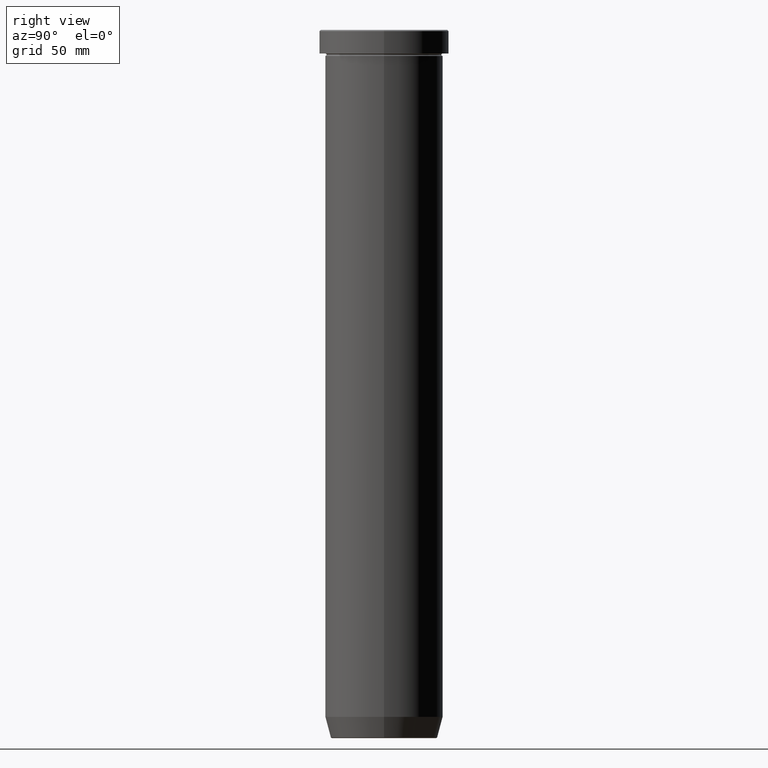
[diagram: clean part render]
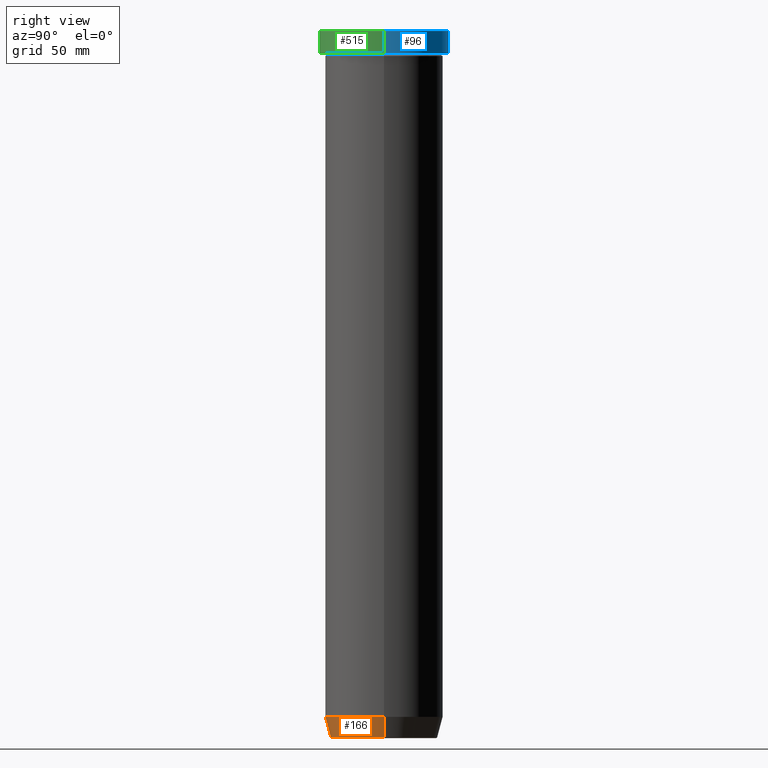
[diagram: same view with three faces highlighted in distinct colors, each labeled with its STEP entity id]
A machine part, right view with three faces highlighted in distinct colors.
Their STEP definitions:

[orange] entity #166 — the highlighted conical surface has half-angle 15 deg.
#5 = CARTESIAN_POINT ( 'NONE',  ( 22.58845726811988897, 0.000000000000000000, -300.0000000000000000 ) ) ;
#10 = CARTESIAN_POINT ( 'NONE',  ( -25.00000000000000000, 3.061616997868383043E-15, -291.0000000000000000 ) ) ;
#22 = AXIS2_PLACEMENT_3D ( 'NONE', #230, #83, #456 ) ;
#75 = CARTESIAN_POINT ( 'NONE',  ( 0.000000000000000000, 0.000000000000000000, -299.6294095225512137 ) ) ;
#78 = AXIS2_PLACEMENT_3D ( 'NONE', #75, #269, #225 ) ;
#83 = DIRECTION ( 'NONE',  ( -0.000000000000000000, -0.000000000000000000, 1.000000000000000000 ) ) ;
#112 = EDGE_CURVE ( 'NONE', #240, #432, #125, .T. ) ;
#119 = CARTESIAN_POINT ( 'NONE',  ( -22.58845726811988897, 2.766288189107978730E-15, -300.0000000000000000 ) ) ;
#125 = CIRCLE ( 'NONE', #22, 25.00000000000000000 ) ;
#132 = FACE_OUTER_BOUND ( 'NONE', #267, .T. ) ;
#133 = VERTEX_POINT ( 'NONE', #544 ) ;
#166 = ADVANCED_FACE ( 'NONE', ( #132 ), #590, .T. ) ;
#181 = LINE ( 'NONE', #119, #395 ) ;
#188 = ORIENTED_EDGE ( 'NONE', *, *, #333, .F. ) ;
#218 = CARTESIAN_POINT ( 'NONE',  ( -22.68775668727494477, 2.920032929279452187E-15, -299.6294095225512137 ) ) ;
#222 = EDGE_CURVE ( 'NONE', #133, #432, #327, .T. ) ;
#225 = DIRECTION ( 'NONE',  ( -1.000000000000000000, 0.000000000000000000, 0.000000000000000000 ) ) ;
#230 = CARTESIAN_POINT ( 'NONE',  ( 0.000000000000000000, 0.000000000000000000, -291.0000000000000000 ) ) ;
#237 = AXIS2_PLACEMENT_3D ( 'NONE', #277, #239, #323 ) ;
#239 = DIRECTION ( 'NONE',  ( -0.000000000000000000, -0.000000000000000000, 1.000000000000000000 ) ) ;
#240 = VERTEX_POINT ( 'NONE', #10 ) ;
#267 = EDGE_LOOP ( 'NONE', ( #188, #279, #447, #461 ) ) ;
#269 = DIRECTION ( 'NONE',  ( -0.000000000000000000, -0.000000000000000000, 1.000000000000000000 ) ) ;
#277 = CARTESIAN_POINT ( 'NONE',  ( 0.000000000000000000, 0.000000000000000000, -300.0000000000000000 ) ) ;
#279 = ORIENTED_EDGE ( 'NONE', *, *, #572, .T. ) ;
#292 = VECTOR ( 'NONE', #557, 1000.000000000000114 ) ;
#317 = VERTEX_POINT ( 'NONE', #218 ) ;
#323 = DIRECTION ( 'NONE',  ( 1.000000000000000000, 0.000000000000000000, 0.000000000000000000 ) ) ;
#327 = LINE ( 'NONE', #5, #292 ) ;
#333 = EDGE_CURVE ( 'NONE', #317, #240, #181, .T. ) ;
#395 = VECTOR ( 'NONE', #448, 1000.000000000000114 ) ;
#407 = CARTESIAN_POINT ( 'NONE',  ( 25.00000000000000000, 0.000000000000000000, -291.0000000000000000 ) ) ;
#432 = VERTEX_POINT ( 'NONE', #407 ) ;
#447 = ORIENTED_EDGE ( 'NONE', *, *, #222, .T. ) ;
#448 = DIRECTION ( 'NONE',  ( -0.2588190451025211836, 3.169619151431770488E-17, 0.9659258262890680902 ) ) ;
#456 = DIRECTION ( 'NONE',  ( 1.000000000000000000, 0.000000000000000000, 0.000000000000000000 ) ) ;
#461 = ORIENTED_EDGE ( 'NONE', *, *, #112, .F. ) ;
#496 = CIRCLE ( 'NONE', #78, 22.68775668727494477 ) ;
#544 = CARTESIAN_POINT ( 'NONE',  ( 22.68775668727494477, 0.000000000000000000, -299.6294095225512137 ) ) ;
#557 = DIRECTION ( 'NONE',  ( 0.2588190451025211836, 0.000000000000000000, 0.9659258262890680902 ) ) ;
#572 = EDGE_CURVE ( 'NONE', #317, #133, #496, .T. ) ;
#590 = CONICAL_SURFACE ( 'NONE', #237, 22.58845726811988897, 0.2617993877991499074 ) ;

[blue] entity #96 — the highlighted cylindrical surface (partial cylindrical patch) has radius 27.5 mm, axis along (-0, -0, 1).
#27 = ORIENTED_EDGE ( 'NONE', *, *, #433, .T. ) ;
#32 = VECTOR ( 'NONE', #538, 1000.000000000000000 ) ;
#40 = CARTESIAN_POINT ( 'NONE',  ( 27.50000000000000000, 0.000000000000000000, 0.000000000000000000 ) ) ;
#68 = VERTEX_POINT ( 'NONE', #172 ) ;
#84 = LINE ( 'NONE', #457, #413 ) ;
#90 = CIRCLE ( 'NONE', #368, 27.50000000000000000 ) ;
#96 = ADVANCED_FACE ( 'NONE', ( #105 ), #363, .T. ) ;
#105 = FACE_OUTER_BOUND ( 'NONE', #563, .T. ) ;
#115 = CIRCLE ( 'NONE', #246, 27.50000000000000000 ) ;
#151 = DIRECTION ( 'NONE',  ( 1.000000000000000000, 0.000000000000000000, 0.000000000000000000 ) ) ;
#153 = DIRECTION ( 'NONE',  ( -0.000000000000000000, -0.000000000000000000, 1.000000000000000000 ) ) ;
#160 = ORIENTED_EDGE ( 'NONE', *, *, #523, .F. ) ;
#172 = CARTESIAN_POINT ( 'NONE',  ( 27.50000000000000000, 0.000000000000000000, -9.999999999999998224 ) ) ;
#177 = VERTEX_POINT ( 'NONE', #570 ) ;
#192 = EDGE_CURVE ( 'NONE', #256, #177, #90, .T. ) ;
#246 = AXIS2_PLACEMENT_3D ( 'NONE', #353, #402, #586 ) ;
#252 = DIRECTION ( 'NONE',  ( 1.000000000000000000, 0.000000000000000000, 0.000000000000000000 ) ) ;
#253 = VERTEX_POINT ( 'NONE', #487 ) ;
#256 = VERTEX_POINT ( 'NONE', #329 ) ;
#288 = ORIENTED_EDGE ( 'NONE', *, *, #192, .T. ) ;
#301 = ORIENTED_EDGE ( 'NONE', *, *, #336, .T. ) ;
#329 = CARTESIAN_POINT ( 'NONE',  ( -27.50000000000000000, 3.367778697655221307E-15, -0.5000000000000143219 ) ) ;
#336 = EDGE_CURVE ( 'NONE', #68, #253, #115, .T. ) ;
#353 = CARTESIAN_POINT ( 'NONE',  ( 0.000000000000000000, 0.000000000000000000, -9.999999999999998224 ) ) ;
#357 = DIRECTION ( 'NONE',  ( -0.000000000000000000, -0.000000000000000000, 1.000000000000000000 ) ) ;
#363 = CYLINDRICAL_SURFACE ( 'NONE', #555, 27.50000000000000000 ) ;
#368 = AXIS2_PLACEMENT_3D ( 'NONE', #554, #509, #151 ) ;
#402 = DIRECTION ( 'NONE',  ( -0.000000000000000000, -0.000000000000000000, 1.000000000000000000 ) ) ;
#413 = VECTOR ( 'NONE', #357, 1000.000000000000000 ) ;
#433 = EDGE_CURVE ( 'NONE', #253, #256, #84, .T. ) ;
#457 = CARTESIAN_POINT ( 'NONE',  ( -27.50000000000000000, 3.367778697655221307E-15, 0.000000000000000000 ) ) ;
#471 = LINE ( 'NONE', #40, #32 ) ;
#487 = CARTESIAN_POINT ( 'NONE',  ( -27.50000000000000000, 3.367778697655221307E-15, -9.999999999999998224 ) ) ;
#509 = DIRECTION ( 'NONE',  ( 0.000000000000000000, 0.000000000000000000, -1.000000000000000000 ) ) ;
#523 = EDGE_CURVE ( 'NONE', #68, #177, #471, .T. ) ;
#538 = DIRECTION ( 'NONE',  ( -0.000000000000000000, -0.000000000000000000, 1.000000000000000000 ) ) ;
#549 = CARTESIAN_POINT ( 'NONE',  ( 0.000000000000000000, 0.000000000000000000, 0.000000000000000000 ) ) ;
#554 = CARTESIAN_POINT ( 'NONE',  ( 0.000000000000000000, 0.000000000000000000, -0.5000000000000143219 ) ) ;
#555 = AXIS2_PLACEMENT_3D ( 'NONE', #549, #153, #252 ) ;
#563 = EDGE_LOOP ( 'NONE', ( #301, #27, #288, #160 ) ) ;
#570 = CARTESIAN_POINT ( 'NONE',  ( 27.50000000000000000, 0.000000000000000000, -0.5000000000000143219 ) ) ;
#586 = DIRECTION ( 'NONE',  ( 1.000000000000000000, 0.000000000000000000, 0.000000000000000000 ) ) ;

[green] entity #515 — the highlighted cylindrical surface (partial cylindrical patch) has radius 27.5 mm, axis along (-0, -0, 1).
#32 = VECTOR ( 'NONE', #538, 1000.000000000000000 ) ;
#40 = CARTESIAN_POINT ( 'NONE',  ( 27.50000000000000000, 0.000000000000000000, 0.000000000000000000 ) ) ;
#68 = VERTEX_POINT ( 'NONE', #172 ) ;
#84 = LINE ( 'NONE', #457, #413 ) ;
#92 = CARTESIAN_POINT ( 'NONE',  ( 0.000000000000000000, 0.000000000000000000, -9.999999999999998224 ) ) ;
#127 = CIRCLE ( 'NONE', #583, 27.50000000000000000 ) ;
#154 = FACE_OUTER_BOUND ( 'NONE', #531, .T. ) ;
#157 = DIRECTION ( 'NONE',  ( -0.000000000000000000, -0.000000000000000000, 1.000000000000000000 ) ) ;
#172 = CARTESIAN_POINT ( 'NONE',  ( 27.50000000000000000, 0.000000000000000000, -9.999999999999998224 ) ) ;
#173 = ORIENTED_EDGE ( 'NONE', *, *, #343, .T. ) ;
#177 = VERTEX_POINT ( 'NONE', #570 ) ;
#190 = ORIENTED_EDGE ( 'NONE', *, *, #523, .T. ) ;
#201 = CARTESIAN_POINT ( 'NONE',  ( 0.000000000000000000, 0.000000000000000000, 0.000000000000000000 ) ) ;
#253 = VERTEX_POINT ( 'NONE', #487 ) ;
#256 = VERTEX_POINT ( 'NONE', #329 ) ;
#286 = DIRECTION ( 'NONE',  ( 1.000000000000000000, 0.000000000000000000, 0.000000000000000000 ) ) ;
#287 = ORIENTED_EDGE ( 'NONE', *, *, #433, .F. ) ;
#293 = AXIS2_PLACEMENT_3D ( 'NONE', #92, #418, #367 ) ;
#297 = DIRECTION ( 'NONE',  ( 1.000000000000000000, 0.000000000000000000, 0.000000000000000000 ) ) ;
#329 = CARTESIAN_POINT ( 'NONE',  ( -27.50000000000000000, 3.367778697655221307E-15, -0.5000000000000143219 ) ) ;
#337 = ORIENTED_EDGE ( 'NONE', *, *, #589, .T. ) ;
#343 = EDGE_CURVE ( 'NONE', #177, #256, #127, .T. ) ;
#347 = CARTESIAN_POINT ( 'NONE',  ( 0.000000000000000000, 0.000000000000000000, -0.5000000000000143219 ) ) ;
#357 = DIRECTION ( 'NONE',  ( -0.000000000000000000, -0.000000000000000000, 1.000000000000000000 ) ) ;
#367 = DIRECTION ( 'NONE',  ( 1.000000000000000000, 0.000000000000000000, 0.000000000000000000 ) ) ;
#413 = VECTOR ( 'NONE', #357, 1000.000000000000000 ) ;
#418 = DIRECTION ( 'NONE',  ( -0.000000000000000000, -0.000000000000000000, 1.000000000000000000 ) ) ;
#429 = CYLINDRICAL_SURFACE ( 'NONE', #452, 27.50000000000000000 ) ;
#433 = EDGE_CURVE ( 'NONE', #253, #256, #84, .T. ) ;
#445 = CIRCLE ( 'NONE', #293, 27.50000000000000000 ) ;
#452 = AXIS2_PLACEMENT_3D ( 'NONE', #201, #157, #297 ) ;
#457 = CARTESIAN_POINT ( 'NONE',  ( -27.50000000000000000, 3.367778697655221307E-15, 0.000000000000000000 ) ) ;
#471 = LINE ( 'NONE', #40, #32 ) ;
#487 = CARTESIAN_POINT ( 'NONE',  ( -27.50000000000000000, 3.367778697655221307E-15, -9.999999999999998224 ) ) ;
#512 = DIRECTION ( 'NONE',  ( 0.000000000000000000, 0.000000000000000000, -1.000000000000000000 ) ) ;
#515 = ADVANCED_FACE ( 'NONE', ( #154 ), #429, .T. ) ;
#523 = EDGE_CURVE ( 'NONE', #68, #177, #471, .T. ) ;
#531 = EDGE_LOOP ( 'NONE', ( #287, #337, #190, #173 ) ) ;
#538 = DIRECTION ( 'NONE',  ( -0.000000000000000000, -0.000000000000000000, 1.000000000000000000 ) ) ;
#570 = CARTESIAN_POINT ( 'NONE',  ( 27.50000000000000000, 0.000000000000000000, -0.5000000000000143219 ) ) ;
#583 = AXIS2_PLACEMENT_3D ( 'NONE', #347, #512, #286 ) ;
#589 = EDGE_CURVE ( 'NONE', #253, #68, #445, .T. ) ;